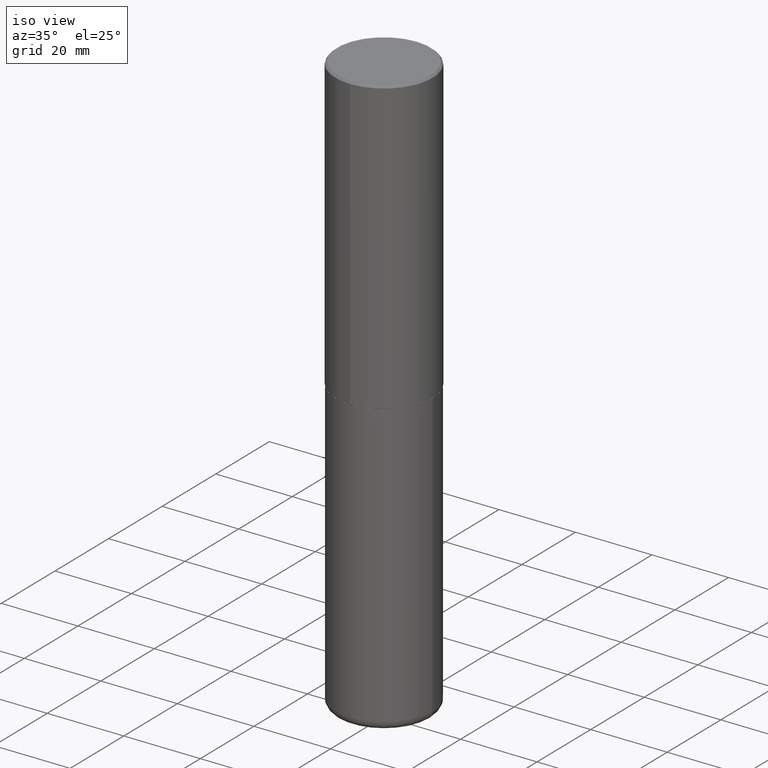
[diagram: clean part render]
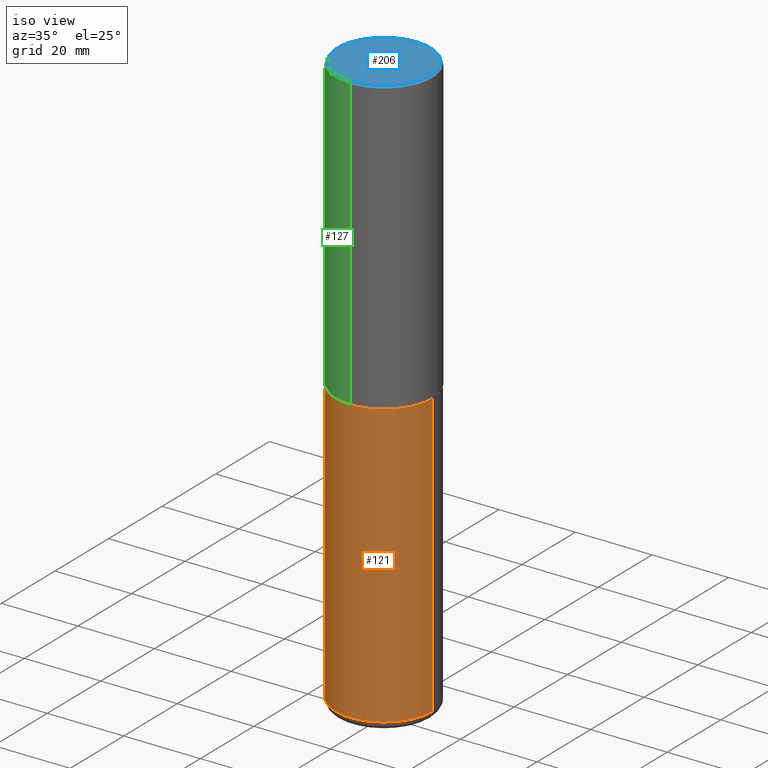
[diagram: same view with three faces highlighted in distinct colors, each labeled with its STEP entity id]
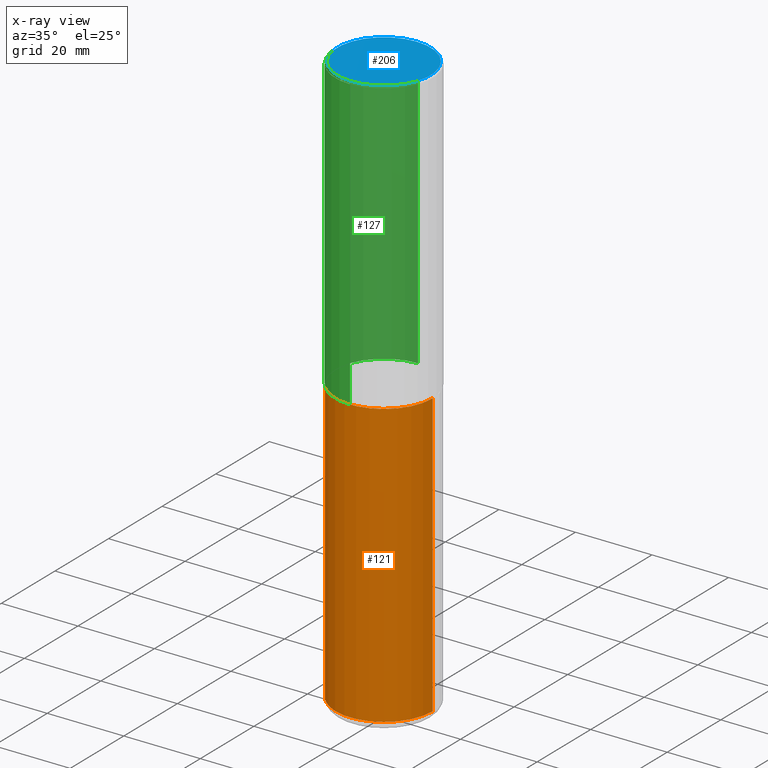
[diagram: x-ray of the same camera — body ghosted, the three highlighted faces saturated]
A machine part, iso view with three faces highlighted in distinct colors.
The next image is the same camera in x-ray (body ghosted, the three faces saturated) — at least one of them is partly hidden behind the body in this view.
Their STEP definitions:

[orange] entity #121 — the highlighted cylindrical surface (partial cylindrical patch) has radius 12.7 mm, axis along (-0, 0, 1).
#3 = AXIS2_PLACEMENT_3D ( 'NONE', #388, #414, #418 ) ;
#14 = LINE ( 'NONE', #107, #204 ) ;
#20 = DIRECTION ( 'NONE',  ( -2.445468806185136877E-29, 3.491481338843145188E-15, 1.000000000000000000 ) ) ;
#46 = CARTESIAN_POINT ( 'NONE',  ( 7.336406418555409790E-29, -1.047444401652943635E-14, -3.000000000000000444 ) ) ;
#57 = VERTEX_POINT ( 'NONE', #256 ) ;
#72 = CIRCLE ( 'NONE', #286, 0.5000000000000000000 ) ;
#79 = DIRECTION ( 'NONE',  ( 1.000000000000000000, -6.982962677686266711E-15, 0.000000000000000000 ) ) ;
#82 = LINE ( 'NONE', #398, #329 ) ;
#99 = ORIENTED_EDGE ( 'NONE', *, *, #333, .F. ) ;
#107 = CARTESIAN_POINT ( 'NONE',  ( 0.5000000000000000000, -3.491481338843133355E-15, 2.438088387897967896E-29 ) ) ;
#115 = CARTESIAN_POINT ( 'NONE',  ( 1.445272064455415567E-28, -2.063465471256298944E-14, -5.910000000000000142 ) ) ;
#121 = ADVANCED_FACE ( 'NONE', ( #326 ), #353, .T. ) ;
#147 = DIRECTION ( 'NONE',  ( 1.000000000000000000, -6.982962677686262766E-15, 0.000000000000000000 ) ) ;
#152 = VERTEX_POINT ( 'NONE', #200 ) ;
#190 = EDGE_CURVE ( 'NONE', #281, #57, #72, .T. ) ;
#192 = EDGE_LOOP ( 'NONE', ( #99, #293, #310, #410 ) ) ;
#194 = AXIS2_PLACEMENT_3D ( 'NONE', #115, #408, #147 ) ;
#200 = CARTESIAN_POINT ( 'NONE',  ( -0.5000000000000001110, -1.708194103376248851E-14, -5.910000000000000142 ) ) ;
#204 = VECTOR ( 'NONE', #301, 39.37007874015748143 ) ;
#205 = DIRECTION ( 'NONE',  ( -2.445468806185136597E-29, 3.491481338843145583E-15, 1.000000000000000000 ) ) ;
#227 = CARTESIAN_POINT ( 'NONE',  ( -0.5000000000000000000, -1.200183568574571118E-14, -3.000000000000000444 ) ) ;
#231 = EDGE_CURVE ( 'NONE', #376, #57, #14, .T. ) ;
#238 = CARTESIAN_POINT ( 'NONE',  ( 0.5000000000000001110, -2.412613605140612280E-14, -5.910000000000000142 ) ) ;
#256 = CARTESIAN_POINT ( 'NONE',  ( 0.5000000000000000000, -1.396592535537257129E-14, -3.000000000000000444 ) ) ;
#281 = VERTEX_POINT ( 'NONE', #227 ) ;
#286 = AXIS2_PLACEMENT_3D ( 'NONE', #46, #205, #79 ) ;
#293 = ORIENTED_EDGE ( 'NONE', *, *, #368, .T. ) ;
#301 = DIRECTION ( 'NONE',  ( -2.445468806185136877E-29, 3.491481338843145188E-15, 1.000000000000000000 ) ) ;
#310 = ORIENTED_EDGE ( 'NONE', *, *, #231, .T. ) ;
#326 = FACE_OUTER_BOUND ( 'NONE', #192, .T. ) ;
#329 = VECTOR ( 'NONE', #20, 39.37007874015748143 ) ;
#333 = EDGE_CURVE ( 'NONE', #152, #281, #82, .T. ) ;
#346 = CIRCLE ( 'NONE', #194, 0.5000000000000000000 ) ;
#353 = CYLINDRICAL_SURFACE ( 'NONE', #3, 0.5000000000000000000 ) ;
#368 = EDGE_CURVE ( 'NONE', #152, #376, #346, .T. ) ;
#376 = VERTEX_POINT ( 'NONE', #238 ) ;
#388 = CARTESIAN_POINT ( 'NONE',  ( 0.000000000000000000, 0.000000000000000000, 0.000000000000000000 ) ) ;
#398 = CARTESIAN_POINT ( 'NONE',  ( -0.5000000000000000000, 3.552713678800500929E-15, -2.459467545127452891E-29 ) ) ;
#408 = DIRECTION ( 'NONE',  ( -2.445468806185136597E-29, 3.491481338843145583E-15, 1.000000000000000000 ) ) ;
#410 = ORIENTED_EDGE ( 'NONE', *, *, #190, .F. ) ;
#414 = DIRECTION ( 'NONE',  ( -2.445468806185136597E-29, 3.491481338843145583E-15, 1.000000000000000000 ) ) ;
#418 = DIRECTION ( 'NONE',  ( 1.000000000000000000, -6.982962677686266711E-15, 4.876176775795935793E-29 ) ) ;

[blue] entity #206 — the highlighted planar face has unit normal (0, -0, -1).
#4 = CIRCLE ( 'NONE', #352, 0.4799999999999999267 ) ;
#7 = DIRECTION ( 'NONE',  ( -2.444898033699712212E-29, 3.492298717528625990E-15, 1.000000000000000000 ) ) ;
#11 = DIRECTION ( 'NONE',  ( 6.982962677686265922E-15, 1.000000000000000000, -3.492298717528626385E-15 ) ) ;
#37 = CARTESIAN_POINT ( 'NONE',  ( 3.421651712066270057E-15, 0.4799999999999999267, -1.573466742882299844E-15 ) ) ;
#50 = CIRCLE ( 'NONE', #380, 0.4799999999999999267 ) ;
#76 = FACE_OUTER_BOUND ( 'NONE', #146, .T. ) ;
#91 = VERTEX_POINT ( 'NONE', #284 ) ;
#102 = ORIENTED_EDGE ( 'NONE', *, *, #168, .T. ) ;
#108 = DIRECTION ( 'NONE',  ( -6.982962677686265922E-15, -1.000000000000000000, 3.492298717528625990E-15 ) ) ;
#122 = VERTEX_POINT ( 'NONE', #37 ) ;
#135 = CARTESIAN_POINT ( 'NONE',  ( 3.351822085289407153E-15, 0.4799999999999999267, -1.624885063648019971E-15 ) ) ;
#137 = PLANE ( 'NONE',  #156 ) ;
#140 = DIRECTION ( 'NONE',  ( 2.444898033699711371E-29, -3.492298717528626385E-15, -1.000000000000000000 ) ) ;
#146 = EDGE_LOOP ( 'NONE', ( #102, #250 ) ) ;
#156 = AXIS2_PLACEMENT_3D ( 'NONE', #135, #140, #11 ) ;
#168 = EDGE_CURVE ( 'NONE', #122, #91, #50, .T. ) ;
#206 = ADVANCED_FACE ( 'NONE', ( #76 ), #137, .F. ) ;
#250 = ORIENTED_EDGE ( 'NONE', *, *, #262, .T. ) ;
#262 = EDGE_CURVE ( 'NONE', #91, #122, #4, .T. ) ;
#268 = DIRECTION ( 'NONE',  ( -2.444898033699712212E-29, 3.492298717528625990E-15, 1.000000000000000000 ) ) ;
#284 = CARTESIAN_POINT ( 'NONE',  ( -3.361644018908049661E-15, -0.4799999999999999267, 1.779140025945180744E-15 ) ) ;
#352 = AXIS2_PLACEMENT_3D ( 'NONE', #391, #7, #108 ) ;
#360 = DIRECTION ( 'NONE',  ( -6.982962677686265922E-15, -1.000000000000000000, 3.492298717528625990E-15 ) ) ;
#364 = CARTESIAN_POINT ( 'NONE',  ( -2.514251026725007597E-45, 3.591362713352002573E-31, 1.028366415314403880E-16 ) ) ;
#380 = AXIS2_PLACEMENT_3D ( 'NONE', #364, #268, #360 ) ;
#391 = CARTESIAN_POINT ( 'NONE',  ( -2.514251026725007597E-45, 3.591362713352002573E-31, 1.028366415314403880E-16 ) ) ;

[green] entity #127 — the highlighted cylindrical surface (partial cylindrical patch) has radius 12.7 mm, axis along (-0, 0, 1).
#10 = AXIS2_PLACEMENT_3D ( 'NONE', #385, #294, #347 ) ;
#25 = CARTESIAN_POINT ( 'NONE',  ( 3.491481338843133355E-15, 0.4999999999999999445, -0.02000000000000185310 ) ) ;
#30 = CARTESIAN_POINT ( 'NONE',  ( 4.889796067399450837E-31, -6.984597435057287381E-17, -0.02000000000000010797 ) ) ;
#32 = DIRECTION ( 'NONE',  ( -6.982962677686265922E-15, -1.000000000000000000, 3.491643216902136408E-15 ) ) ;
#34 = DIRECTION ( 'NONE',  ( -2.444898033699712212E-29, 3.492298717528625990E-15, 1.000000000000000000 ) ) ;
#40 = DIRECTION ( 'NONE',  ( -6.982962677686266711E-15, -1.000000000000000000, 3.278217592397114284E-15 ) ) ;
#42 = CARTESIAN_POINT ( 'NONE',  ( -3.430248998885764992E-15, -0.5000000000000001110, -0.01999999999999835937 ) ) ;
#55 = VERTEX_POINT ( 'NONE', #253 ) ;
#92 = EDGE_CURVE ( 'NONE', #402, #144, #387, .T. ) ;
#96 = FACE_OUTER_BOUND ( 'NONE', #242, .T. ) ;
#101 = AXIS2_PLACEMENT_3D ( 'NONE', #30, #34, #32 ) ;
#103 = CARTESIAN_POINT ( 'NONE',  ( 3.552713678800501718E-15, 0.5000000000000001110, -1.746149358764313390E-15 ) ) ;
#127 = ADVANCED_FACE ( 'NONE', ( #96 ), #163, .T. ) ;
#131 = AXIS2_PLACEMENT_3D ( 'NONE', #267, #330, #40 ) ;
#141 = VERTEX_POINT ( 'NONE', #288 ) ;
#144 = VERTEX_POINT ( 'NONE', #42 ) ;
#148 = VECTOR ( 'NONE', #171, 39.37007874015748143 ) ;
#163 = CYLINDRICAL_SURFACE ( 'NONE', #10, 0.5000000000000001110 ) ;
#171 = DIRECTION ( 'NONE',  ( -2.444898033699711931E-29, 3.492298717528626385E-15, 1.000000000000000000 ) ) ;
#218 = EDGE_CURVE ( 'NONE', #55, #144, #303, .T. ) ;
#233 = LINE ( 'NONE', #103, #399 ) ;
#235 = EDGE_CURVE ( 'NONE', #141, #55, #365, .T. ) ;
#242 = EDGE_LOOP ( 'NONE', ( #248, #290, #342, #395 ) ) ;
#246 = EDGE_CURVE ( 'NONE', #141, #402, #233, .T. ) ;
#248 = ORIENTED_EDGE ( 'NONE', *, *, #246, .F. ) ;
#253 = CARTESIAN_POINT ( 'NONE',  ( -3.491481338843061569E-15, -0.5000000000000107692, -2.998999999999998778 ) ) ;
#261 = CARTESIAN_POINT ( 'NONE',  ( -3.491481338843133750E-15, -0.5000000000000001110, 1.746149358764313390E-15 ) ) ;
#267 = CARTESIAN_POINT ( 'NONE',  ( 7.332249203065438921E-29, -1.047340385386834930E-14, -2.999000000000000554 ) ) ;
#288 = CARTESIAN_POINT ( 'NONE',  ( 3.552713678800539584E-15, 0.4999999999999898970, -2.999000000000001886 ) ) ;
#290 = ORIENTED_EDGE ( 'NONE', *, *, #235, .T. ) ;
#294 = DIRECTION ( 'NONE',  ( -2.444898033699712212E-29, 3.492298717528625990E-15, 1.000000000000000000 ) ) ;
#303 = LINE ( 'NONE', #261, #148 ) ;
#330 = DIRECTION ( 'NONE',  ( -2.444898033699712212E-29, 3.492298717528625990E-15, 1.000000000000000000 ) ) ;
#342 = ORIENTED_EDGE ( 'NONE', *, *, #218, .T. ) ;
#347 = DIRECTION ( 'NONE',  ( -6.982962677686265922E-15, -1.000000000000000000, 3.492298717528625990E-15 ) ) ;
#361 = DIRECTION ( 'NONE',  ( -2.444898033699711931E-29, 3.492298717528626385E-15, 1.000000000000000000 ) ) ;
#365 = CIRCLE ( 'NONE', #131, 0.5000000000000002220 ) ;
#385 = CARTESIAN_POINT ( 'NONE',  ( 0.000000000000000000, 0.000000000000000000, 0.000000000000000000 ) ) ;
#387 = CIRCLE ( 'NONE', #101, 0.5000000000000000000 ) ;
#395 = ORIENTED_EDGE ( 'NONE', *, *, #92, .F. ) ;
#399 = VECTOR ( 'NONE', #361, 39.37007874015748143 ) ;
#402 = VERTEX_POINT ( 'NONE', #25 ) ;